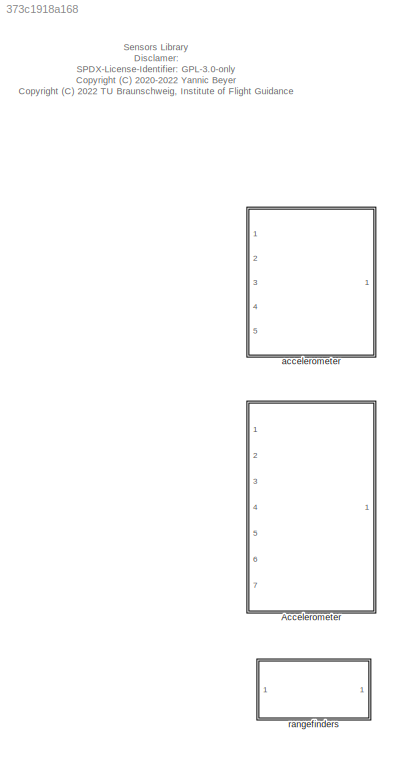
MODEL slx_373c1918a168
KIND library
CONFIG AbsTol = auto
CONFIG EnableMultiTasking = off
CONFIG FixedStep = auto
CONFIG MaxStep = auto
CONFIG MinStep = auto
CONFIG RelTol = 1e-3
CONFIG SampleTimeConstraint = Unconstrained
CONFIG Solver = VariableStepAuto
CONFIG SolverName = VariableStepAuto
CONFIG StartTime = 0.0
CONFIG StopTime = 10.0
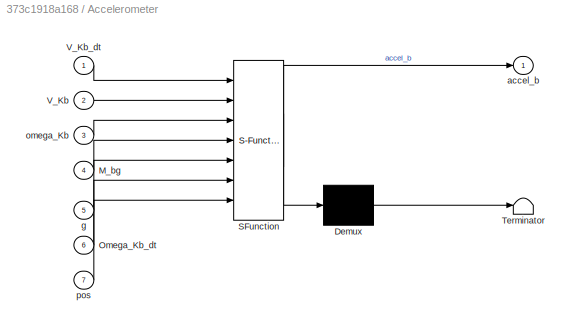
BLOCK [SubSystem] Accelerometer
  ErrorFcn = Stateflow.Translate.translate
  PermitHierarchicalResolution = ExplicitOnly
  Ports = [7, 1]
  RequestExecContextInheritance = off
  SFBlockType = MATLAB Function
  TreatAsAtomicUnit = on
BLOCK [Demux] Accelerometer/ Demux 
  Outputs = 1
  Ports = [1, 1]
BLOCK [S-Function] Accelerometer/ SFunction 
  EnableBusSupport = off
  FunctionName = sf_sfun
  PortCounts = [7 2]
  Ports = [7, 2]
  SFcnIsStateOwnerBlock = off
  SFunctionDeploymentMode = off
  Tag = Stateflow S-Function sensors_lib 1
BLOCK [Terminator] Accelerometer/ Terminator 
BLOCK [Inport] Accelerometer/M_bg
  IconDisplay = Port number
  Port = 4
BLOCK [Inport] Accelerometer/Omega_Kb_dt
  IconDisplay = Port number
  Port = 6
BLOCK [Inport] Accelerometer/V_Kb
  IconDisplay = Port number
  Port = 2
BLOCK [Inport] Accelerometer/V_Kb_dt
  IconDisplay = Port number
BLOCK [Outport] Accelerometer/accel_b
  IconDisplay = Port number
BLOCK [Inport] Accelerometer/g
  IconDisplay = Port number
  Port = 5
BLOCK [Inport] Accelerometer/omega_Kb
  IconDisplay = Port number
  Port = 3
BLOCK [Inport] Accelerometer/pos
  IconDisplay = Port number
  Port = 7
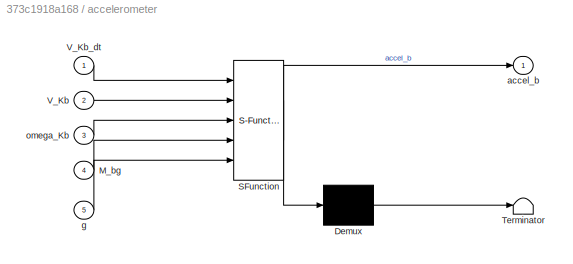
BLOCK [SubSystem] accelerometer
  ErrorFcn = Stateflow.Translate.translate
  PermitHierarchicalResolution = ExplicitOnly
  Ports = [5, 1]
  RequestExecContextInheritance = off
  SFBlockType = MATLAB Function
  TreatAsAtomicUnit = on
BLOCK [Demux] accelerometer/ Demux 
  Outputs = 1
  Ports = [1, 1]
BLOCK [S-Function] accelerometer/ SFunction 
  EnableBusSupport = off
  FunctionName = sf_sfun
  PortCounts = [5 2]
  Ports = [5, 2]
  SFcnIsStateOwnerBlock = off
  SFunctionDeploymentMode = off
  Tag = Stateflow S-Function sensors_lib 2
BLOCK [Terminator] accelerometer/ Terminator 
BLOCK [Inport] accelerometer/M_bg
  IconDisplay = Port number
  Port = 4
BLOCK [Inport] accelerometer/V_Kb
  IconDisplay = Port number
  Port = 2
BLOCK [Inport] accelerometer/V_Kb_dt
  IconDisplay = Port number
BLOCK [Outport] accelerometer/accel_b
  IconDisplay = Port number
BLOCK [Inport] accelerometer/g
  IconDisplay = Port number
  Port = 5
BLOCK [Inport] accelerometer/omega_Kb
  IconDisplay = Port number
  Port = 3
BLOCK [SubSystem] rangefinders
  OpenFcn = rangefinders_lib
  Ports = []
  RequestExecContextInheritance = off
ANNOTATION (root): Sensors Library Disclamer: SPDX-License-Identifier: GPL-3.0-only <copyright redacted>
CHART Accelerometer states=1 transitions=1
  STATE_LABEL 'eML_blk_kernel()'
  STATE_LABEL 'SCRIPT:\nfunction accel_b = fcn( V_Kb_dt, V_Kb, omega_Kb, M_bg, g, Omega_Kb_dt, pos ) %#codegen\naccel_b = accelerometer( V_Kb_dt, V_Kb, omega_Kb, M_bg, g, Omega_Kb_dt, pos );\nend\n'
CHART accelerometer states=1 transitions=1
  STATE_LABEL 'eML_blk_kernel()'
  STATE_LABEL 'SCRIPT:\nfunction accel_b = fcn( V_Kb_dt, V_Kb, omega_Kb, M_bg, g ) %#codegen\naccel_b = accelerometer( V_Kb_dt, V_Kb, omega_Kb, M_bg, g );\nend\n'
